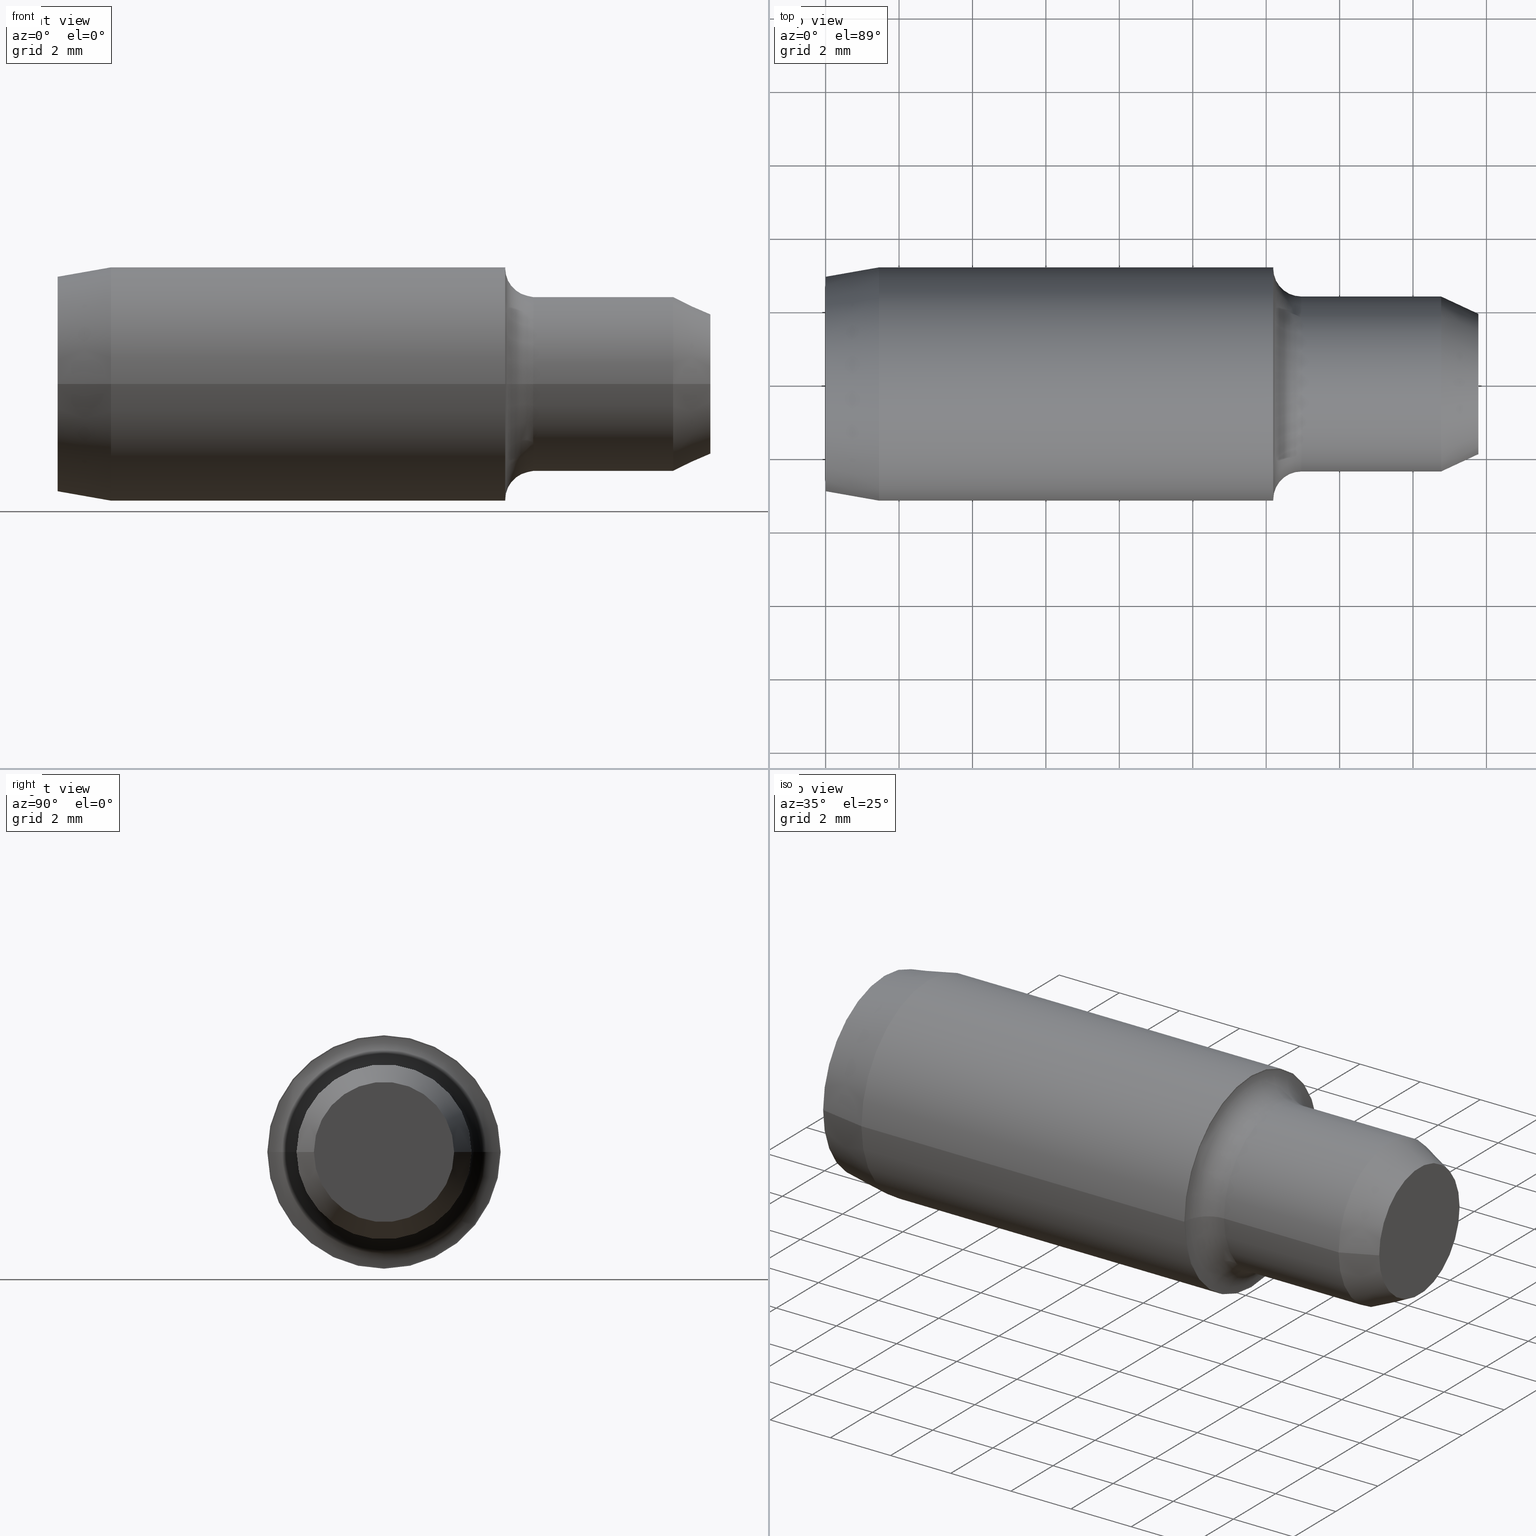
[diagram: canonical four-view strip — front | top / right | iso, engineering-drawing reading convention]
A machine part, canonical four-view strip (front | top / right | iso — engineering-drawing reading convention). The complete STEP part file that produces these views, byte-faithful:
ISO-10303-21;
HEADER;
FILE_DESCRIPTION (( 'STEP AP214' ),
    '1' );
FILE_NAME ('D1300022-v2 aLIGO Pcal Periscope Mirror Alignment Pin.STEP',
    '2013-01-11T23:59:04',
    ( 'ligo' ),
    ( 'Microsoft' ),
    'SwSTEP 2.0',
    'SolidWorks 2012',
    '' );
FILE_SCHEMA (( 'AUTOMOTIVE_DESIGN' ));
ENDSEC;

DATA;
#1 = ADVANCED_BREP_SHAPE_REPRESENTATION ( 'D1300022-v2 aLIGO Pcal Periscope Mirror Alignment Pin', ( #4, #34 ), #72 ) ;
#2 = UNCERTAINTY_MEASURE_WITH_UNIT (LENGTH_MEASURE( 1.000000000000000100E-005 ), #157, 'distance_accuracy_value', 'NONE');
#3 = UNCERTAINTY_MEASURE_WITH_UNIT (LENGTH_MEASURE( 1.000000000000000100E-005 ), #196, 'distance_accuracy_value', 'NONE');
#4 = MANIFOLD_SOLID_BREP ( 'Revolve1', #319 ) ;
#5 = UNCERTAINTY_MEASURE_WITH_UNIT (LENGTH_MEASURE( 1.000000000000000100E-005 ), #162, 'distance_accuracy_value', 'NONE');
#6 = ADVANCED_FACE ( 'NONE', ( #283 ), #253, .T. ) ;
#7 = ADVANCED_FACE ( 'NONE', ( #232 ), #229, .T. ) ;
#8 = ADVANCED_FACE ( 'NONE', ( #280, #276 ), #186, .F. ) ;
#9 = ADVANCED_FACE ( 'NONE', ( #277 ), #236, .F. ) ;
#10 = ADVANCED_FACE ( 'NONE', ( #309 ), #231, .T. ) ;
#11 = ADVANCED_FACE ( 'NONE', ( #306 ), #251, .T. ) ;
#12 = EDGE_CURVE ( 'NONE', #254, #352, #313, .T. ) ;
#13 = EDGE_CURVE ( 'NONE', #352, #254, #275, .T. ) ;
#14 = EDGE_CURVE ( 'NONE', #228, #329, #247, .T. ) ;
#15 = EDGE_CURVE ( 'NONE', #343, #234, #304, .T. ) ;
#16 = EDGE_CURVE ( 'NONE', #343, #256, #369, .T. ) ;
#17 = EDGE_CURVE ( 'NONE', #256, #336, #255, .T. ) ;
#18 = STYLED_ITEM ( 'NONE', ( #342 ), #4 ) ;
#19 = EDGE_CURVE ( 'NONE', #336, #281, #249, .T. ) ;
#20 = EDGE_CURVE ( 'NONE', #343, #281, #250, .T. ) ;
#21 = EDGE_CURVE ( 'NONE', #281, #336, #244, .T. ) ;
#22 = EDGE_CURVE ( 'NONE', #329, #351, #307, .T. ) ;
#23 = EDGE_CURVE ( 'NONE', #260, #344, #308, .T. ) ;
#24 = EDGE_CURVE ( 'NONE', #328, #234, #246, .T. ) ;
#25 = EDGE_CURVE ( 'NONE', #260, #281, #301, .T. ) ;
#26 = EDGE_CURVE ( 'NONE', #344, #260, #298, .T. ) ;
#27 = EDGE_CURVE ( 'NONE', #329, #228, #295, .T. ) ;
#28 = EDGE_CURVE ( 'NONE', #234, #328, #299, .T. ) ;
#29 = EDGE_CURVE ( 'NONE', #351, #315, #292, .T. ) ;
#30 = EDGE_CURVE ( 'NONE', #254, #329, #293, .T. ) ;
#31 = EDGE_CURVE ( 'NONE', #315, #351, #288, .T. ) ;
#32 = PRODUCT_DEFINITION_FORMATION_WITH_SPECIFIED_SOURCE ( 'ANY', '', #78, .NOT_KNOWN. ) ;
#33 = PRODUCT_RELATED_PRODUCT_CATEGORY ( 'part', '', ( #78 ) ) ;
#34 = AXIS2_PLACEMENT_3D ( 'NONE', #179, #183, #194 ) ;
#35 = PRODUCT_DEFINITION ( 'UNKNOWN', '', #32, #381 ) ;
#36 = PRESENTATION_LAYER_ASSIGNMENT (  '', '', ( #18 ) ) ;
#37 =( GEOMETRIC_REPRESENTATION_CONTEXT ( 3 ) GLOBAL_UNCERTAINTY_ASSIGNED_CONTEXT ( ( #3 ) ) GLOBAL_UNIT_ASSIGNED_CONTEXT ( ( #196, #219, #221 ) ) REPRESENTATION_CONTEXT ( 'NONE', 'WORKASPACE' ) );
#38 = EDGE_CURVE ( 'NONE', #352, #228, #285, .T. ) ;
#39 = EDGE_CURVE ( 'NONE', #228, #315, #284, .T. ) ;
#40 = AXIS2_PLACEMENT_3D ( 'NONE', #217, #210, #209 ) ;
#41 = EDGE_CURVE ( 'NONE', #256, #343, #262, .T. ) ;
#42 = MECHANICAL_DESIGN_GEOMETRIC_PRESENTATION_REPRESENTATION (  '', ( #18 ), #37 ) ;
#43 = EDGE_CURVE ( 'NONE', #256, #328, #266, .T. ) ;
#44 = EDGE_CURVE ( 'NONE', #344, #336, #282, .T. ) ;
#45 = STYLED_ITEM ( 'NONE', ( #300 ), #1 ) ;
#46 = PRESENTATION_LAYER_ASSIGNMENT (  '', '', ( #45 ) ) ;
#47 = AXIS2_PLACEMENT_3D ( 'NONE', #201, #84, #82 ) ;
#48 = AXIS2_PLACEMENT_3D ( 'NONE', #188, #218, #225 ) ;
#49 = AXIS2_PLACEMENT_3D ( 'NONE', #189, #213, #195 ) ;
#50 = AXIS2_PLACEMENT_3D ( 'NONE', #212, #193, #198 ) ;
#51 = AXIS2_PLACEMENT_3D ( 'NONE', #211, #199, #185 ) ;
#52 = AXIS2_PLACEMENT_3D ( 'NONE', #205, #204, #202 ) ;
#53 = AXIS2_PLACEMENT_3D ( 'NONE', #142, #144, #136 ) ;
#54 = AXIS2_PLACEMENT_3D ( 'NONE', #147, #101, #174 ) ;
#55 = AXIS2_PLACEMENT_3D ( 'NONE', #138, #143, #140 ) ;
#56 = AXIS2_PLACEMENT_3D ( 'NONE', #127, #156, #164 ) ;
#57 = AXIS2_PLACEMENT_3D ( 'NONE', #165, #177, #96 ) ;
#58 = AXIS2_PLACEMENT_3D ( 'NONE', #89, #120, #167 ) ;
#59 = AXIS2_PLACEMENT_3D ( 'NONE', #99, #168, #119 ) ;
#60 = AXIS2_PLACEMENT_3D ( 'NONE', #94, #129, #170 ) ;
#61 = AXIS2_PLACEMENT_3D ( 'NONE', #103, #88, #160 ) ;
#62 = AXIS2_PLACEMENT_3D ( 'NONE', #158, #206, #133 ) ;
#63 = AXIS2_PLACEMENT_3D ( 'NONE', #155, #216, #171 ) ;
#64 = AXIS2_PLACEMENT_3D ( 'NONE', #124, #85, #97 ) ;
#65 = AXIS2_PLACEMENT_3D ( 'NONE', #121, #102, #123 ) ;
#66 = AXIS2_PLACEMENT_3D ( 'NONE', #203, #208, #125 ) ;
#67 = AXIS2_PLACEMENT_3D ( 'NONE', #118, #90, #106 ) ;
#68 = AXIS2_PLACEMENT_3D ( 'NONE', #86, #137, #135 ) ;
#69 = AXIS2_PLACEMENT_3D ( 'NONE', #110, #149, #87 ) ;
#70 = AXIS2_PLACEMENT_3D ( 'NONE', #116, #126, #80 ) ;
#71 = AXIS2_PLACEMENT_3D ( 'NONE', #112, #197, #130 ) ;
#72 =( GEOMETRIC_REPRESENTATION_CONTEXT ( 3 ) GLOBAL_UNCERTAINTY_ASSIGNED_CONTEXT ( ( #5 ) ) GLOBAL_UNIT_ASSIGNED_CONTEXT ( ( #162, #187, #113 ) ) REPRESENTATION_CONTEXT ( 'NONE', 'WORKASPACE' ) );
#73 = MECHANICAL_DESIGN_GEOMETRIC_PRESENTATION_REPRESENTATION (  '', ( #45 ), #74 ) ;
#74 =( GEOMETRIC_REPRESENTATION_CONTEXT ( 3 ) GLOBAL_UNCERTAINTY_ASSIGNED_CONTEXT ( ( #2 ) ) GLOBAL_UNIT_ASSIGNED_CONTEXT ( ( #157, #166, #134 ) ) REPRESENTATION_CONTEXT ( 'NONE', 'WORKASPACE' ) );
#75 = AXIS2_PLACEMENT_3D ( 'NONE', #95, #175, #131 ) ;
#76 = AXIS2_PLACEMENT_3D ( 'NONE', #180, #150, #176 ) ;
#77 = AXIS2_PLACEMENT_3D ( 'NONE', #114, #115, #92 ) ;
#78 = PRODUCT ( 'D1300022-v2 aLIGO Pcal Periscope Mirror Alignment Pin', 'D1300022-v2 aLIGO Pcal Periscope Mirror Alignment Pin', '', ( #226 ) ) ;
#79 = CARTESIAN_POINT ( 'NONE',  ( -1.532033145733338200E-017, 0.1250999999999999600, 0.0000000000000000000 ) ) ;
#80 = DIRECTION ( 'NONE',  ( -1.224646799147353500E-016, 1.000000000000000000, 0.0000000000000000000 ) ) ;
#81 = PLANE ( 'NONE',  #75 ) ;
#82 = DIRECTION ( 'NONE',  ( -1.224646799147353200E-016, 1.000000000000000000, 0.0000000000000000000 ) ) ;
#83 = CARTESIAN_POINT ( 'NONE',  ( 0.6599999999999999200, -0.09384999999999987800, 0.0000000000000000000 ) ) ;
#84 = DIRECTION ( 'NONE',  ( 1.000000000000000000, 1.224646799147353200E-016, -0.0000000000000000000 ) ) ;
#85 = DIRECTION ( 'NONE',  ( 1.000000000000000000, 1.224646799147353200E-016, -0.0000000000000000000 ) ) ;
#86 = CARTESIAN_POINT ( 'NONE',  ( 2.112515728529184200E-017, 2.587085625091704400E-033, 0.0000000000000000000 ) ) ;
#87 = DIRECTION ( 'NONE',  ( 1.224646799147353200E-016, -1.000000000000000000, 0.0000000000000000000 ) ) ;
#88 = DIRECTION ( 'NONE',  ( 1.000000000000000000, 1.224646799147353200E-016, -0.0000000000000000000 ) ) ;
#89 = CARTESIAN_POINT ( 'NONE',  ( 0.6599999999999999200, 8.082668874372529300E-017, 0.0000000000000000000 ) ) ;
#90 = DIRECTION ( 'NONE',  ( -1.499759782661857600E-032, 1.224646799147353200E-016, 1.000000000000000000 ) ) ;
#91 = DIRECTION ( 'NONE',  ( 0.9848077530122080200, 0.1736481776669307500, 0.0000000000000000000 ) ) ;
#92 = DIRECTION ( 'NONE',  ( 0.0000000000000000000, -1.000000000000000000, 0.0000000000000000000 ) ) ;
#93 = CARTESIAN_POINT ( 'NONE',  ( 1.532033145733338200E-017, -0.1250999999999999600, 1.532033145733338200E-017 ) ) ;
#94 = CARTESIAN_POINT ( 'NONE',  ( 0.4799999999999999800, 5.878304635907294700E-017, 0.0000000000000000000 ) ) ;
#95 = CARTESIAN_POINT ( 'NONE',  ( 1.056257864264592100E-017, 1.293542812545852200E-033, 0.0000000000000000000 ) ) ;
#96 = DIRECTION ( 'NONE',  ( 0.0000000000000000000, 1.000000000000000000, 0.0000000000000000000 ) ) ;
#97 = DIRECTION ( 'NONE',  ( 0.0000000000000000000, 1.000000000000000000, 0.0000000000000000000 ) ) ;
#98 = CARTESIAN_POINT ( 'NONE',  ( 0.4799999999999999300, -0.1238499999999999300, 1.516725060743996900E-017 ) ) ;
#99 = CARTESIAN_POINT ( 'NONE',  ( 0.6999999999999999600, 8.572527594031472000E-017, 0.0000000000000000000 ) ) ;
#100 = CARTESIAN_POINT ( 'NONE',  ( 7.041719095097280800E-018, 0.1150000000000000000, 0.0000000000000000000 ) ) ;
#101 = DIRECTION ( 'NONE',  ( 1.000000000000000000, 1.224646799147353200E-016, -0.0000000000000000000 ) ) ;
#102 = DIRECTION ( 'NONE',  ( 1.000000000000000000, 1.224646799147353200E-016, -0.0000000000000000000 ) ) ;
#103 = CARTESIAN_POINT ( 'NONE',  ( 0.6999999999999999600, 8.572527594031472000E-017, 0.0000000000000000000 ) ) ;
#104 =( LENGTH_UNIT ( ) NAMED_UNIT ( * ) SI_UNIT ( $, .METRE. ) );
#105 = APPLICATION_CONTEXT ( 'automotive_design' ) ;
#106 = DIRECTION ( 'NONE',  ( 0.0000000000000000000, -1.000000000000000000, 1.224646799147353500E-016 ) ) ;
#107 = CARTESIAN_POINT ( 'NONE',  ( 0.4799999999999999300, 0.1238500000000000700, 0.0000000000000000000 ) ) ;
#108 = CARTESIAN_POINT ( 'NONE',  ( 0.6999999999999999600, 0.07519769367380038600, 1.035118584804308900E-017 ) ) ;
#109 = CARTESIAN_POINT ( 'NONE',  ( 0.5100000000000000100, -0.09384999999999994700, 1.149331020999791300E-017 ) ) ;
#110 = CARTESIAN_POINT ( 'NONE',  ( 0.6999999999999999600, 1.714505518806293900E-016, 0.0000000000000000000 ) ) ;
#111 = CARTESIAN_POINT ( 'NONE',  ( 0.4799999999999999300, -0.1250999999999998800, 1.532033145733338200E-017 ) ) ;
#112 = CARTESIAN_POINT ( 'NONE',  ( 0.0000000000000000000, 0.0000000000000000000, 0.0000000000000000000 ) ) ;
#113 =( NAMED_UNIT ( * ) SI_UNIT ( $, .STERADIAN. ) SOLID_ANGLE_UNIT ( ) );
#114 = CARTESIAN_POINT ( 'NONE',  ( 0.6599999999999999200, 8.082668874372529300E-017, 0.0000000000000000000 ) ) ;
#115 = DIRECTION ( 'NONE',  ( -1.000000000000000000, -1.224646799147353200E-016, 0.0000000000000000000 ) ) ;
#116 = CARTESIAN_POINT ( 'NONE',  ( 0.0000000000000000000, 0.0000000000000000000, 0.0000000000000000000 ) ) ;
#117 = CARTESIAN_POINT ( 'NONE',  ( 0.6599999999999999200, 0.09385000000000004400, 1.149331020999790400E-017 ) ) ;
#118 = CARTESIAN_POINT ( 'NONE',  ( 0.5100000000000000100, -0.1238499999999999300, 1.516725060743996900E-017 ) ) ;
#119 = DIRECTION ( 'NONE',  ( 0.0000000000000000000, 1.000000000000000000, 0.0000000000000000000 ) ) ;
#120 = DIRECTION ( 'NONE',  ( 1.000000000000000000, 1.224646799147353200E-016, -0.0000000000000000000 ) ) ;
#121 = CARTESIAN_POINT ( 'NONE',  ( 0.4799999999999999300, 5.878304635907294700E-017, 0.0000000000000000000 ) ) ;
#122 = CARTESIAN_POINT ( 'NONE',  ( 3.520859547548640700E-017, -0.1150000000000000000, 1.470188482376397500E-017 ) ) ;
#123 = DIRECTION ( 'NONE',  ( 0.0000000000000000000, 1.000000000000000000, 0.0000000000000000000 ) ) ;
#124 = CARTESIAN_POINT ( 'NONE',  ( 0.4799999999999999300, 5.878304635907294700E-017, 0.0000000000000000000 ) ) ;
#125 = DIRECTION ( 'NONE',  ( 0.0000000000000000000, 1.000000000000000000, 0.0000000000000000000 ) ) ;
#126 = DIRECTION ( 'NONE',  ( 1.000000000000000000, 1.224646799147353200E-016, -0.0000000000000000000 ) ) ;
#127 = CARTESIAN_POINT ( 'NONE',  ( 0.5100000000000000100, 6.245698675651501100E-017, 0.0000000000000000000 ) ) ;
#128 = FILL_AREA_STYLE_COLOUR ( '', #289 ) ;
#129 = DIRECTION ( 'NONE',  ( 1.000000000000000000, 1.224646799147353200E-016, -0.0000000000000000000 ) ) ;
#130 = DIRECTION ( 'NONE',  ( -1.224646799147353000E-016, 1.000000000000000000, 0.0000000000000000000 ) ) ;
#131 = DIRECTION ( 'NONE',  ( -1.224646799147353200E-016, 1.000000000000000000, 0.0000000000000000000 ) ) ;
#132 = FILL_AREA_STYLE ('',( #128 ) ) ;
#133 = DIRECTION ( 'NONE',  ( -1.364832131127230000E-016, 1.000000000000000000, 0.0000000000000000000 ) ) ;
#134 =( NAMED_UNIT ( * ) SI_UNIT ( $, .STERADIAN. ) SOLID_ANGLE_UNIT ( ) );
#135 = DIRECTION ( 'NONE',  ( -1.224646799147353200E-016, 1.000000000000000000, 0.0000000000000000000 ) ) ;
#136 = DIRECTION ( 'NONE',  ( -1.224646799147353200E-016, 1.000000000000000000, 0.0000000000000000000 ) ) ;
#137 = DIRECTION ( 'NONE',  ( 1.000000000000000000, 1.224646799147353200E-016, -0.0000000000000000000 ) ) ;
#138 = CARTESIAN_POINT ( 'NONE',  ( 0.5100000000000000100, 0.1238500000000000700, 0.0000000000000000000 ) ) ;
#139 = APPLICATION_PROTOCOL_DEFINITION ( 'draft international standard', 'automotive_design', 1998, #105 ) ;
#140 = DIRECTION ( 'NONE',  ( -1.000000000000000000, 0.0000000000000000000, 0.0000000000000000000 ) ) ;
#141 = DIRECTION ( 'NONE',  ( 1.000000000000000000, 1.224646799147353200E-016, -0.0000000000000000000 ) ) ;
#142 = CARTESIAN_POINT ( 'NONE',  ( 2.112515728529184200E-017, 2.587085625091704400E-033, 0.0000000000000000000 ) ) ;
#143 = DIRECTION ( 'NONE',  ( -0.0000000000000000000, 0.0000000000000000000, -1.000000000000000000 ) ) ;
#144 = DIRECTION ( 'NONE',  ( 1.000000000000000000, 1.224646799147353200E-016, -0.0000000000000000000 ) ) ;
#145 = DIRECTION ( 'NONE',  ( -0.9063077870366522700, 0.4226182617406941100, 5.175581015019595900E-017 ) ) ;
#146 = CARTESIAN_POINT ( 'NONE',  ( -1.149331020999790800E-017, 0.09384999999999997500, 0.0000000000000000000 ) ) ;
#147 = CARTESIAN_POINT ( 'NONE',  ( 0.05727994637813868500, 7.014770298731958000E-018, 0.0000000000000000000 ) ) ;
#148 = CARTESIAN_POINT ( 'NONE',  ( 0.6999999999999999600, -0.07519769367380022000, 0.0000000000000000000 ) ) ;
#149 = DIRECTION ( 'NONE',  ( -1.000000000000000000, -1.224646799147353200E-016, 0.0000000000000000000 ) ) ;
#150 = DIRECTION ( 'NONE',  ( 1.000000000000000000, 1.224646799147353200E-016, -0.0000000000000000000 ) ) ;
#151 = CARTESIAN_POINT ( 'NONE',  ( 0.6599999999999999200, 0.09385000000000004400, 1.149331020999790400E-017 ) ) ;
#152 = CARTESIAN_POINT ( 'NONE',  ( 0.05727994637813870600, -0.1250999999999999600, 1.532033145733339100E-017 ) ) ;
#153 = SURFACE_SIDE_STYLE ('',( #290 ) ) ;
#154 = CARTESIAN_POINT ( 'NONE',  ( 3.520859547548640700E-017, -0.1150000000000000000, 1.408343819019456200E-017 ) ) ;
#155 = CARTESIAN_POINT ( 'NONE',  ( 0.4799999999999999800, 5.878304635907294700E-017, 0.0000000000000000000 ) ) ;
#156 = DIRECTION ( 'NONE',  ( 1.000000000000000000, 1.224646799147353200E-016, -0.0000000000000000000 ) ) ;
#157 =( CONVERSION_BASED_UNIT ( 'INCH', #279 ) LENGTH_UNIT ( ) NAMED_UNIT ( #370 ) );
#158 = CARTESIAN_POINT ( 'NONE',  ( 0.05727994637813868500, 7.014770298731958000E-018, 0.0000000000000000000 ) ) ;
#159 = DIRECTION ( 'NONE',  ( -0.9063077870366522700, -0.4226182617406943900, 0.0000000000000000000 ) ) ;
#160 = DIRECTION ( 'NONE',  ( 0.0000000000000000000, 1.000000000000000000, 0.0000000000000000000 ) ) ;
#161 = DIRECTION ( 'NONE',  ( 0.9848077530122080200, -0.1736481776669305300, 2.126576849575775000E-017 ) ) ;
#162 =( CONVERSION_BASED_UNIT ( 'INCH', #303 ) LENGTH_UNIT ( ) NAMED_UNIT ( #371 ) );
#163 = CARTESIAN_POINT ( 'NONE',  ( 0.05727994637813867100, 0.1250999999999999900, 0.0000000000000000000 ) ) ;
#164 = DIRECTION ( 'NONE',  ( 0.0000000000000000000, 1.000000000000000000, 0.0000000000000000000 ) ) ;
#165 = CARTESIAN_POINT ( 'NONE',  ( 0.6599999999999999200, 8.082668874372529300E-017, 0.0000000000000000000 ) ) ;
#166 =( NAMED_UNIT ( * ) PLANE_ANGLE_UNIT ( ) SI_UNIT ( $, .RADIAN. ) );
#167 = DIRECTION ( 'NONE',  ( 0.0000000000000000000, 1.000000000000000000, 0.0000000000000000000 ) ) ;
#168 = DIRECTION ( 'NONE',  ( 1.000000000000000000, 1.224646799147353200E-016, -0.0000000000000000000 ) ) ;
#169 = CARTESIAN_POINT ( 'NONE',  ( 0.4799999999999999300, 0.1250999999999999900, 0.0000000000000000000 ) ) ;
#170 = DIRECTION ( 'NONE',  ( 0.0000000000000000000, 1.000000000000000000, 0.0000000000000000000 ) ) ;
#171 = DIRECTION ( 'NONE',  ( 0.0000000000000000000, 1.000000000000000000, 0.0000000000000000000 ) ) ;
#172 = CARTESIAN_POINT ( 'NONE',  ( 1.149331020999790800E-017, -0.09384999999999997500, 1.149331020999790800E-017 ) ) ;
#173 = SURFACE_STYLE_USAGE ( .BOTH. , #153 ) ;
#174 = DIRECTION ( 'NONE',  ( -1.364832131127230000E-016, 1.000000000000000000, 0.0000000000000000000 ) ) ;
#175 = DIRECTION ( 'NONE',  ( 1.000000000000000000, 1.224646799147353200E-016, -0.0000000000000000000 ) ) ;
#176 = DIRECTION ( 'NONE',  ( -1.224646799147353200E-016, 1.000000000000000000, 0.0000000000000000000 ) ) ;
#177 = DIRECTION ( 'NONE',  ( 1.000000000000000000, 1.224646799147353200E-016, -0.0000000000000000000 ) ) ;
#178 = PLANE ( 'NONE',  #69 ) ;
#179 = CARTESIAN_POINT ( 'NONE',  ( 0.0000000000000000000, 0.0000000000000000000, 0.0000000000000000000 ) ) ;
#180 = CARTESIAN_POINT ( 'NONE',  ( 0.5100000000000000100, 6.829619984160658000E-017, 0.0000000000000000000 ) ) ;
#181 = CARTESIAN_POINT ( 'NONE',  ( 0.5100000000000000100, 0.09385000000000008600, 0.0000000000000000000 ) ) ;
#182 = APPLICATION_CONTEXT ( 'automotive_design' ) ;
#183 = DIRECTION ( 'NONE',  ( 0.0000000000000000000, 0.0000000000000000000, 1.000000000000000000 ) ) ;
#184 = CARTESIAN_POINT ( 'NONE',  ( 7.041719095097280800E-018, 0.1150000000000000000, 0.0000000000000000000 ) ) ;
#185 = DIRECTION ( 'NONE',  ( 0.0000000000000000000, -1.000000000000000000, 0.0000000000000000000 ) ) ;
#186 = PLANE ( 'NONE',  #49 ) ;
#187 =( NAMED_UNIT ( * ) PLANE_ANGLE_UNIT ( ) SI_UNIT ( $, .RADIAN. ) );
#188 = CARTESIAN_POINT ( 'NONE',  ( 0.0000000000000000000, 0.0000000000000000000, 0.0000000000000000000 ) ) ;
#189 = CARTESIAN_POINT ( 'NONE',  ( 0.4799999999999999300, -0.1250999999999998800, 0.0000000000000000000 ) ) ;
#190 = FILL_AREA_STYLE_COLOUR ( '', #348 ) ;
#191 =( LENGTH_UNIT ( ) NAMED_UNIT ( * ) SI_UNIT ( $, .METRE. ) );
#192 = DIRECTION ( 'NONE',  ( 1.000000000000000000, 1.224646799147353200E-016, -0.0000000000000000000 ) ) ;
#193 = DIRECTION ( 'NONE',  ( 1.000000000000000000, 1.224646799147353200E-016, -0.0000000000000000000 ) ) ;
#194 = DIRECTION ( 'NONE',  ( 1.000000000000000000, 0.0000000000000000000, 0.0000000000000000000 ) ) ;
#195 = DIRECTION ( 'NONE',  ( 1.224646799147353200E-016, -1.000000000000000000, 0.0000000000000000000 ) ) ;
#196 =( CONVERSION_BASED_UNIT ( 'INCH', #347 ) LENGTH_UNIT ( ) NAMED_UNIT ( #372 ) );
#197 = DIRECTION ( 'NONE',  ( 1.000000000000000000, 1.224646799147353200E-016, -0.0000000000000000000 ) ) ;
#198 = DIRECTION ( 'NONE',  ( -1.224646799147353200E-016, 1.000000000000000000, 0.0000000000000000000 ) ) ;
#199 = DIRECTION ( 'NONE',  ( -1.000000000000000000, -1.224646799147353200E-016, 0.0000000000000000000 ) ) ;
#200 = DIRECTION ( 'NONE',  ( 1.000000000000000000, 1.224646799147353200E-016, -0.0000000000000000000 ) ) ;
#201 = CARTESIAN_POINT ( 'NONE',  ( 2.112515728529184200E-017, 2.587085625091704400E-033, 0.0000000000000000000 ) ) ;
#202 = DIRECTION ( 'NONE',  ( -1.224646799147353500E-016, 1.000000000000000000, 0.0000000000000000000 ) ) ;
#203 = CARTESIAN_POINT ( 'NONE',  ( 0.5100000000000000100, 6.245698675651501100E-017, 0.0000000000000000000 ) ) ;
#204 = DIRECTION ( 'NONE',  ( 1.000000000000000000, 1.224646799147353200E-016, -0.0000000000000000000 ) ) ;
#205 = CARTESIAN_POINT ( 'NONE',  ( 0.0000000000000000000, 0.0000000000000000000, 0.0000000000000000000 ) ) ;
#206 = DIRECTION ( 'NONE',  ( 1.000000000000000000, 1.224646799147353200E-016, -0.0000000000000000000 ) ) ;
#207 = DIRECTION ( 'NONE',  ( 1.000000000000000000, 1.224646799147353200E-016, -0.0000000000000000000 ) ) ;
#208 = DIRECTION ( 'NONE',  ( 1.000000000000000000, 1.224646799147353200E-016, -0.0000000000000000000 ) ) ;
#209 = DIRECTION ( 'NONE',  ( -1.224646799147353200E-016, 1.000000000000000000, 0.0000000000000000000 ) ) ;
#210 = DIRECTION ( 'NONE',  ( 1.000000000000000000, 1.224646799147353200E-016, -0.0000000000000000000 ) ) ;
#211 = CARTESIAN_POINT ( 'NONE',  ( 0.6599999999999999200, 8.082668874372529300E-017, 0.0000000000000000000 ) ) ;
#212 = CARTESIAN_POINT ( 'NONE',  ( 0.5100000000000000100, 6.829619984160658000E-017, 0.0000000000000000000 ) ) ;
#213 = DIRECTION ( 'NONE',  ( -1.000000000000000000, -1.224646799147353200E-016, 0.0000000000000000000 ) ) ;
#214 = CARTESIAN_POINT ( 'NONE',  ( 0.6599999999999999200, -0.09384999999999987800, 0.0000000000000000000 ) ) ;
#215 = APPLICATION_PROTOCOL_DEFINITION ( 'draft international standard', 'automotive_design', 1998, #182 ) ;
#216 = DIRECTION ( 'NONE',  ( 1.000000000000000000, 1.224646799147353200E-016, -0.0000000000000000000 ) ) ;
#217 = CARTESIAN_POINT ( 'NONE',  ( 2.112515728529184200E-017, 2.587085625091704400E-033, 0.0000000000000000000 ) ) ;
#218 = DIRECTION ( 'NONE',  ( 1.000000000000000000, 1.224646799147353200E-016, -0.0000000000000000000 ) ) ;
#219 =( NAMED_UNIT ( * ) PLANE_ANGLE_UNIT ( ) SI_UNIT ( $, .RADIAN. ) );
#220 =( LENGTH_UNIT ( ) NAMED_UNIT ( * ) SI_UNIT ( $, .METRE. ) );
#221 =( NAMED_UNIT ( * ) SI_UNIT ( $, .STERADIAN. ) SOLID_ANGLE_UNIT ( ) );
#222 = SURFACE_STYLE_USAGE ( .BOTH. , #223 ) ;
#223 = SURFACE_SIDE_STYLE ('',( #305 ) ) ;
#224 = FILL_AREA_STYLE ('',( #190 ) ) ;
#225 = DIRECTION ( 'NONE',  ( -1.224646799147353000E-016, 1.000000000000000000, 0.0000000000000000000 ) ) ;
#226 = PRODUCT_CONTEXT ( 'NONE', #105, 'mechanical' ) ;
#227 = EDGE_LOOP ( 'NONE', ( #345, #346 ) ) ;
#228 = VERTEX_POINT ( 'NONE', #163 ) ;
#229 = CYLINDRICAL_SURFACE ( 'NONE', #48, 0.1250999999999999600 ) ;
#230 = ORIENTED_EDGE ( 'NONE', *, *, #28, .T. ) ;
#231 = CYLINDRICAL_SURFACE ( 'NONE', #52, 0.09384999999999997500 ) ;
#232 = FACE_OUTER_BOUND ( 'NONE', #235, .T. ) ;
#233 = ORIENTED_EDGE ( 'NONE', *, *, #14, .F. ) ;
#234 = VERTEX_POINT ( 'NONE', #107 ) ;
#235 = EDGE_LOOP ( 'NONE', ( #242, #278, #357, #340 ) ) ;
#236 = TOROIDAL_SURFACE ( 'NONE', #50, 0.1238500000000000000, 0.02999999999999998800 ) ;
#237 = EDGE_LOOP ( 'NONE', ( #334, #314, #326, #339 ) ) ;
#238 = ORIENTED_EDGE ( 'NONE', *, *, #19, .T. ) ;
#239 = EDGE_LOOP ( 'NONE', ( #361, #365, #310, #311 ) ) ;
#240 = VECTOR ( 'NONE', #207, 39.37007874015748100 ) ;
#241 = EDGE_LOOP ( 'NONE', ( #273, #321, #265, #238 ) ) ;
#242 = ORIENTED_EDGE ( 'NONE', *, *, #22, .F. ) ;
#243 = EDGE_LOOP ( 'NONE', ( #350, #349, #325, #366 ) ) ;
#244 = CIRCLE ( 'NONE', #58, 0.09384999999999996100 ) ;
#245 = ORIENTED_EDGE ( 'NONE', *, *, #38, .F. ) ;
#246 = CIRCLE ( 'NONE', #60, 0.1238500000000000000 ) ;
#247 = CIRCLE ( 'NONE', #54, 0.1250999999999999900 ) ;
#248 = VECTOR ( 'NONE', #200, 39.37007874015748100 ) ;
#249 = CIRCLE ( 'NONE', #57, 0.09384999999999996100 ) ;
#250 = LINE ( 'NONE', #146, #240 ) ;
#251 = CONICAL_SURFACE ( 'NONE', #51, 0.09384999999999996100, 0.4363323129985767200 ) ;
#252 = ORIENTED_EDGE ( 'NONE', *, *, #39, .F. ) ;
#253 = CONICAL_SURFACE ( 'NONE', #40, 0.1150000000000000000, 0.1745329251994332500 ) ;
#254 = VERTEX_POINT ( 'NONE', #122 ) ;
#255 = LINE ( 'NONE', #172, #248 ) ;
#256 = VERTEX_POINT ( 'NONE', #109 ) ;
#257 = FACE_OUTER_BOUND ( 'NONE', #243, .T. ) ;
#258 = CONICAL_SURFACE ( 'NONE', #68, 0.1150000000000000000, 0.1745329251994332500 ) ;
#259 = EDGE_LOOP ( 'NONE', ( #318, #362 ) ) ;
#260 = VERTEX_POINT ( 'NONE', #108 ) ;
#261 = TOROIDAL_SURFACE ( 'NONE', #76, 0.1238500000000000000, 0.02999999999999998800 ) ;
#262 = CIRCLE ( 'NONE', #66, 0.09385000000000001700 ) ;
#263 = VECTOR ( 'NONE', #159, 39.37007874015748100 ) ;
#264 = FACE_OUTER_BOUND ( 'NONE', #353, .T. ) ;
#265 = ORIENTED_EDGE ( 'NONE', *, *, #44, .T. ) ;
#266 = CIRCLE ( 'NONE', #67, 0.02999999999999998800 ) ;
#267 = VECTOR ( 'NONE', #192, 39.37007874015748100 ) ;
#268 = VECTOR ( 'NONE', #91, 39.37007874015748100 ) ;
#269 = ORIENTED_EDGE ( 'NONE', *, *, #14, .T. ) ;
#270 = FACE_OUTER_BOUND ( 'NONE', #355, .T. ) ;
#271 = CONICAL_SURFACE ( 'NONE', #77, 0.09384999999999996100, 0.4363323129985767200 ) ;
#272 = FACE_OUTER_BOUND ( 'NONE', #227, .T. ) ;
#273 = ORIENTED_EDGE ( 'NONE', *, *, #25, .F. ) ;
#274 = SHAPE_DEFINITION_REPRESENTATION ( #380, #1 ) ;
#275 = CIRCLE ( 'NONE', #53, 0.1150000000000000000 ) ;
#276 = FACE_OUTER_BOUND ( 'NONE', #259, .T. ) ;
#277 = FACE_OUTER_BOUND ( 'NONE', #337, .T. ) ;
#278 = ORIENTED_EDGE ( 'NONE', *, *, #27, .T. ) ;
#279 = LENGTH_MEASURE_WITH_UNIT ( LENGTH_MEASURE( 0.02539999999999999900 ), #191 );
#280 = FACE_BOUND ( 'NONE', #354, .T. ) ;
#281 = VERTEX_POINT ( 'NONE', #151 ) ;
#282 = LINE ( 'NONE', #214, #263 ) ;
#283 = FACE_OUTER_BOUND ( 'NONE', #239, .T. ) ;
#284 = LINE ( 'NONE', #79, #267 ) ;
#285 = LINE ( 'NONE', #184, #268 ) ;
#286 = CYLINDRICAL_SURFACE ( 'NONE', #70, 0.09384999999999997500 ) ;
#287 = VECTOR ( 'NONE', #161, 39.37007874015748100 ) ;
#288 = CIRCLE ( 'NONE', #65, 0.1250999999999999300 ) ;
#289 = COLOUR_RGB ( '',1.000000000000000000, 0.0000000000000000000, 0.0000000000000000000 ) ;
#290 = SURFACE_STYLE_FILL_AREA ( #132 ) ;
#291 = FACE_OUTER_BOUND ( 'NONE', #330, .T. ) ;
#292 = CIRCLE ( 'NONE', #64, 0.1250999999999999300 ) ;
#293 = LINE ( 'NONE', #154, #287 ) ;
#294 = FACE_OUTER_BOUND ( 'NONE', #324, .T. ) ;
#295 = CIRCLE ( 'NONE', #62, 0.1250999999999999900 ) ;
#296 = VECTOR ( 'NONE', #145, 39.37007874015748100 ) ;
#297 = FACE_OUTER_BOUND ( 'NONE', #312, .T. ) ;
#298 = CIRCLE ( 'NONE', #61, 0.07519769367380030300 ) ;
#299 = CIRCLE ( 'NONE', #63, 0.1238500000000000000 ) ;
#300 = PRESENTATION_STYLE_ASSIGNMENT (( #173 ) ) ;
#301 = LINE ( 'NONE', #117, #296 ) ;
#302 = CYLINDRICAL_SURFACE ( 'NONE', #71, 0.1250999999999999600 ) ;
#303 = LENGTH_MEASURE_WITH_UNIT ( LENGTH_MEASURE( 0.02539999999999999900 ), #104 );
#304 = CIRCLE ( 'NONE', #55, 0.03000000000000002300 ) ;
#305 = SURFACE_STYLE_FILL_AREA ( #224 ) ;
#306 = FACE_OUTER_BOUND ( 'NONE', #241, .T. ) ;
#307 = LINE ( 'NONE', #93, #316 ) ;
#308 = CIRCLE ( 'NONE', #59, 0.07519769367380030300 ) ;
#309 = FACE_OUTER_BOUND ( 'NONE', #237, .T. ) ;
#310 = ORIENTED_EDGE ( 'NONE', *, *, #38, .T. ) ;
#311 = ORIENTED_EDGE ( 'NONE', *, *, #27, .F. ) ;
#312 = EDGE_LOOP ( 'NONE', ( #368, #367, #359, #323 ) ) ;
#313 = CIRCLE ( 'NONE', #47, 0.1150000000000000000 ) ;
#314 = ORIENTED_EDGE ( 'NONE', *, *, #41, .T. ) ;
#315 = VERTEX_POINT ( 'NONE', #169 ) ;
#316 = VECTOR ( 'NONE', #141, 39.37007874015748100 ) ;
#317 = ORIENTED_EDGE ( 'NONE', *, *, #15, .T. ) ;
#318 = ORIENTED_EDGE ( 'NONE', *, *, #31, .T. ) ;
#319 = CLOSED_SHELL ( 'NONE', ( #377, #376, #374, #375, #378, #379, #373, #11, #10, #9, #8, #7, #6 ) ) ;
#320 = ORIENTED_EDGE ( 'NONE', *, *, #23, .F. ) ;
#321 = ORIENTED_EDGE ( 'NONE', *, *, #26, .F. ) ;
#322 = ORIENTED_EDGE ( 'NONE', *, *, #22, .T. ) ;
#323 = ORIENTED_EDGE ( 'NONE', *, *, #20, .F. ) ;
#324 = EDGE_LOOP ( 'NONE', ( #364, #333 ) ) ;
#325 = ORIENTED_EDGE ( 'NONE', *, *, #24, .T. ) ;
#326 = ORIENTED_EDGE ( 'NONE', *, *, #20, .T. ) ;
#327 = ORIENTED_EDGE ( 'NONE', *, *, #43, .F. ) ;
#328 = VERTEX_POINT ( 'NONE', #98 ) ;
#329 = VERTEX_POINT ( 'NONE', #152 ) ;
#330 = EDGE_LOOP ( 'NONE', ( #331, #332, #233, #245 ) ) ;
#331 = ORIENTED_EDGE ( 'NONE', *, *, #13, .T. ) ;
#332 = ORIENTED_EDGE ( 'NONE', *, *, #30, .T. ) ;
#333 = ORIENTED_EDGE ( 'NONE', *, *, #12, .F. ) ;
#334 = ORIENTED_EDGE ( 'NONE', *, *, #17, .F. ) ;
#335 = ORIENTED_EDGE ( 'NONE', *, *, #24, .F. ) ;
#336 = VERTEX_POINT ( 'NONE', #83 ) ;
#337 = EDGE_LOOP ( 'NONE', ( #327, #358, #317, #230 ) ) ;
#338 = ORIENTED_EDGE ( 'NONE', *, *, #28, .F. ) ;
#339 = ORIENTED_EDGE ( 'NONE', *, *, #19, .F. ) ;
#340 = ORIENTED_EDGE ( 'NONE', *, *, #29, .F. ) ;
#341 = ORIENTED_EDGE ( 'NONE', *, *, #25, .T. ) ;
#342 = PRESENTATION_STYLE_ASSIGNMENT (( #222 ) ) ;
#343 = VERTEX_POINT ( 'NONE', #181 ) ;
#344 = VERTEX_POINT ( 'NONE', #148 ) ;
#345 = ORIENTED_EDGE ( 'NONE', *, *, #26, .T. ) ;
#346 = ORIENTED_EDGE ( 'NONE', *, *, #23, .T. ) ;
#347 = LENGTH_MEASURE_WITH_UNIT ( LENGTH_MEASURE( 0.02539999999999999900 ), #220 );
#348 = COLOUR_RGB ( '',1.000000000000000000, 0.0000000000000000000, 0.0000000000000000000 ) ;
#349 = ORIENTED_EDGE ( 'NONE', *, *, #43, .T. ) ;
#350 = ORIENTED_EDGE ( 'NONE', *, *, #41, .F. ) ;
#351 = VERTEX_POINT ( 'NONE', #111 ) ;
#352 = VERTEX_POINT ( 'NONE', #100 ) ;
#353 = EDGE_LOOP ( 'NONE', ( #320, #341, #360, #363 ) ) ;
#354 = EDGE_LOOP ( 'NONE', ( #338, #335 ) ) ;
#355 = EDGE_LOOP ( 'NONE', ( #269, #322, #356, #252 ) ) ;
#356 = ORIENTED_EDGE ( 'NONE', *, *, #31, .F. ) ;
#357 = ORIENTED_EDGE ( 'NONE', *, *, #39, .T. ) ;
#358 = ORIENTED_EDGE ( 'NONE', *, *, #16, .F. ) ;
#359 = ORIENTED_EDGE ( 'NONE', *, *, #21, .F. ) ;
#360 = ORIENTED_EDGE ( 'NONE', *, *, #21, .T. ) ;
#361 = ORIENTED_EDGE ( 'NONE', *, *, #30, .F. ) ;
#362 = ORIENTED_EDGE ( 'NONE', *, *, #29, .T. ) ;
#363 = ORIENTED_EDGE ( 'NONE', *, *, #44, .F. ) ;
#364 = ORIENTED_EDGE ( 'NONE', *, *, #13, .F. ) ;
#365 = ORIENTED_EDGE ( 'NONE', *, *, #12, .T. ) ;
#366 = ORIENTED_EDGE ( 'NONE', *, *, #15, .F. ) ;
#367 = ORIENTED_EDGE ( 'NONE', *, *, #17, .T. ) ;
#368 = ORIENTED_EDGE ( 'NONE', *, *, #16, .T. ) ;
#369 = CIRCLE ( 'NONE', #56, 0.09385000000000001700 ) ;
#370 = DIMENSIONAL_EXPONENTS ( 1.000000000000000000, 0.0000000000000000000, 0.0000000000000000000, 0.0000000000000000000, 0.0000000000000000000, 0.0000000000000000000, 0.0000000000000000000 ) ;
#371 = DIMENSIONAL_EXPONENTS ( 1.000000000000000000, 0.0000000000000000000, 0.0000000000000000000, 0.0000000000000000000, 0.0000000000000000000, 0.0000000000000000000, 0.0000000000000000000 ) ;
#372 = DIMENSIONAL_EXPONENTS ( 1.000000000000000000, 0.0000000000000000000, 0.0000000000000000000, 0.0000000000000000000, 0.0000000000000000000, 0.0000000000000000000, 0.0000000000000000000 ) ;
#373 = ADVANCED_FACE ( 'NONE', ( #272 ), #178, .F. ) ;
#374 = ADVANCED_FACE ( 'NONE', ( #257 ), #261, .F. ) ;
#375 = ADVANCED_FACE ( 'NONE', ( #297 ), #286, .T. ) ;
#376 = ADVANCED_FACE ( 'NONE', ( #270 ), #302, .T. ) ;
#377 = ADVANCED_FACE ( 'NONE', ( #291 ), #258, .T. ) ;
#378 = ADVANCED_FACE ( 'NONE', ( #264 ), #271, .T. ) ;
#379 = ADVANCED_FACE ( 'NONE', ( #294 ), #81, .F. ) ;
#380 = PRODUCT_DEFINITION_SHAPE ( 'NONE', 'NONE',  #35 ) ;
#381 = PRODUCT_DEFINITION_CONTEXT ( 'detailed design', #182, 'design' ) ;
ENDSEC;
END-ISO-10303-21;
